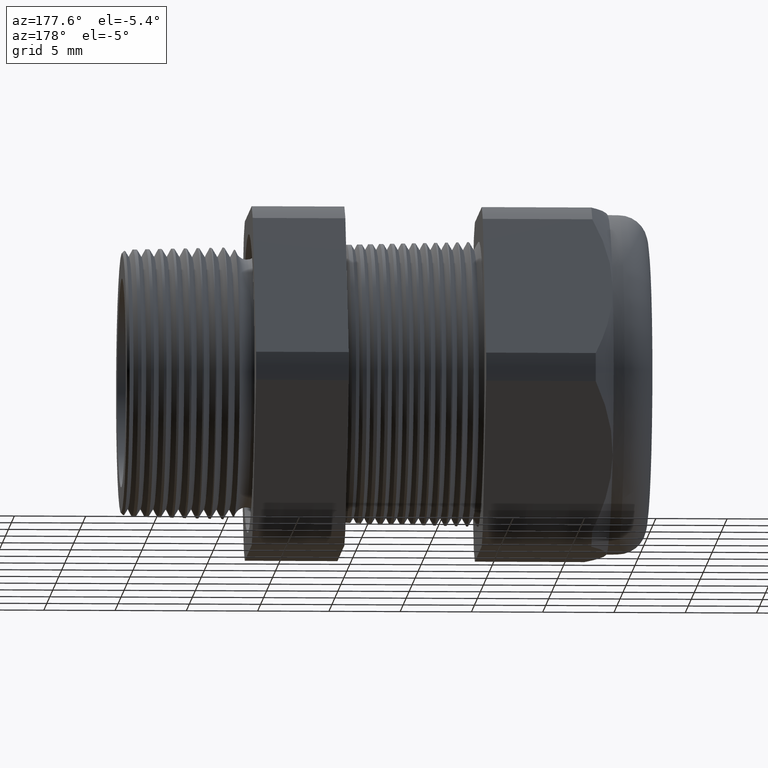
[diagram: clean part render]
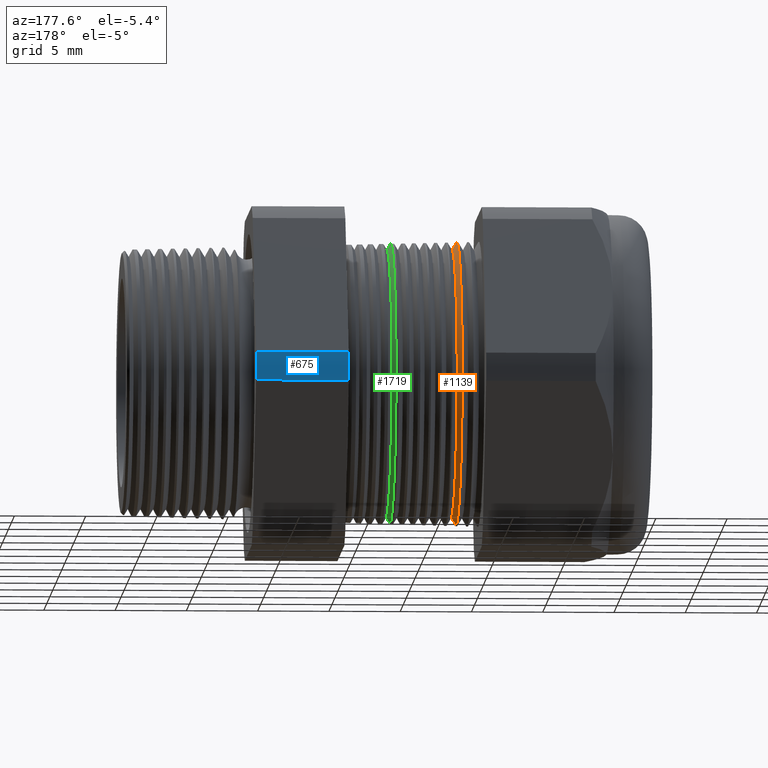
[diagram: same view with three faces highlighted in distinct colors, each labeled with its STEP entity id]
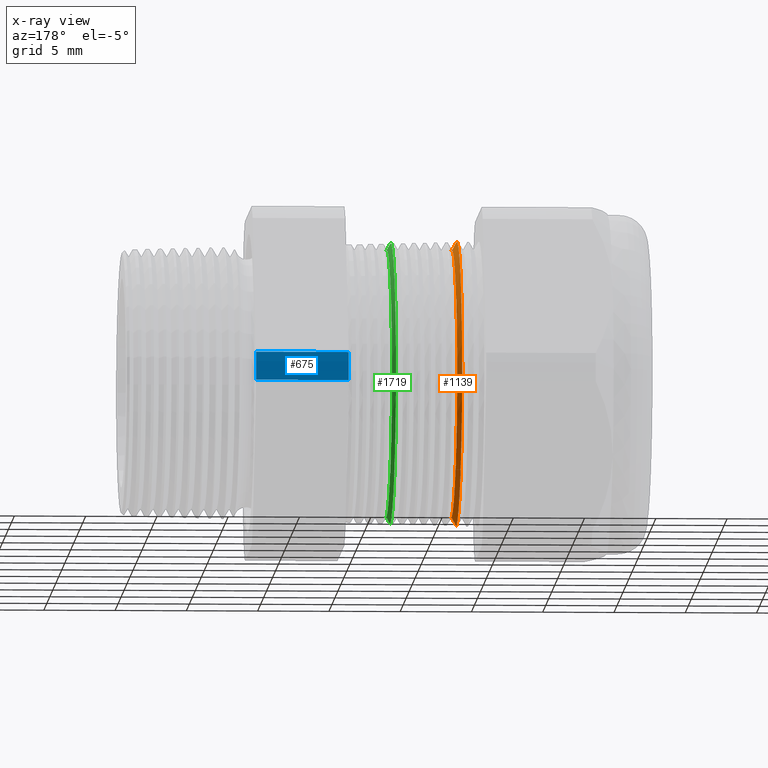
[diagram: x-ray of the same camera — body ghosted, the three highlighted faces saturated]
A machine part, auxiliary view with three faces highlighted in distinct colors.
The next image is the same camera in x-ray (body ghosted, the three faces saturated) — at least one of them is partly hidden behind the body in this view.
Their STEP definitions:

[orange] entity #1139 — the highlighted conical surface has half-angle 61.5 deg.
#1127 = EDGE_CURVE ( 'NONE', #1128, #1129, #3652, .T. ) ;
#1128 = VERTEX_POINT ( 'NONE', #3647 ) ;
#1129 = VERTEX_POINT ( 'NONE', #3646 ) ;
#1136 = EDGE_LOOP ( 'NONE', ( #1140, #1141, #1144, #1147 ) ) ;
#1139 = ADVANCED_FACE ( 'NONE', ( #3630 ), #3627, .T. ) ;
#1140 = ORIENTED_EDGE ( 'NONE', *, *, #1127, .F. ) ;
#1141 = ORIENTED_EDGE ( 'NONE', *, *, #1142, .T. ) ;
#1142 = EDGE_CURVE ( 'NONE', #1128, #1143, #3685, .T. ) ;
#1143 = VERTEX_POINT ( 'NONE', #3681 ) ;
#1144 = ORIENTED_EDGE ( 'NONE', *, *, #1145, .T. ) ;
#1145 = EDGE_CURVE ( 'NONE', #1143, #1146, #3680, .T. ) ;
#1146 = VERTEX_POINT ( 'NONE', #3675 ) ;
#1147 = ORIENTED_EDGE ( 'NONE', *, *, #1148, .F. ) ;
#1148 = EDGE_CURVE ( 'NONE', #1129, #1146, #3674, .T. ) ;
#3623 = DIRECTION ( 'NONE',  ( 0.0000000000000000000, 0.0000000000000000000, 1.000000000000000000 ) ) ;
#3624 = DIRECTION ( 'NONE',  ( -1.000000000000000000, 0.0000000000000000000, 0.0000000000000000000 ) ) ;
#3625 = CARTESIAN_POINT ( 'NONE',  ( -0.8854330708661419800, 0.0000000000000000000, 0.0000000000000000000 ) ) ;
#3626 = AXIS2_PLACEMENT_3D ( 'NONE', #3625, #3624, #3623 ) ;
#3627 = CONICAL_SURFACE ( 'NONE', #3626, 0.3950000000000000200, 1.073377489976500500 ) ;
#3630 = FACE_OUTER_BOUND ( 'NONE', #1136, .T. ) ;
#3646 = CARTESIAN_POINT ( 'NONE',  ( -0.8716586839320380500, 0.0000000000000000000, 0.3696307351718083300 ) ) ;
#3647 = CARTESIAN_POINT ( 'NONE',  ( -0.8716586839320380500, 4.672253604444746000E-017, -0.3696307351718083300 ) ) ;
#3648 = DIRECTION ( 'NONE',  ( 0.0000000000000000000, 0.0000000000000000000, -1.000000000000000000 ) ) ;
#3649 = DIRECTION ( 'NONE',  ( 1.000000000000000000, 0.0000000000000000000, 0.0000000000000000000 ) ) ;
#3650 = CARTESIAN_POINT ( 'NONE',  ( -0.8716586839320380500, 0.0000000000000000000, 0.0000000000000000000 ) ) ;
#3651 = AXIS2_PLACEMENT_3D ( 'NONE', #3650, #3649, #3648 ) ;
#3652 = CIRCLE ( 'NONE', #3651, 0.3696307351718083300 ) ;
#3671 = DIRECTION ( 'NONE',  ( -0.4771587602596191200, 0.0000000000000000000, 0.8788171126619595000 ) ) ;
#3672 = VECTOR ( 'NONE', #3671, 39.37007874015748100 ) ;
#3673 = CARTESIAN_POINT ( 'NONE',  ( -0.8854330708661419800, 0.0000000000000000000, 0.3950000000000000200 ) ) ;
#3674 = LINE ( 'NONE', #3673, #3672 ) ;
#3675 = CARTESIAN_POINT ( 'NONE',  ( -0.8845676994707502000, 0.0000000000000000000, 0.3934061841583613200 ) ) ;
#3676 = DIRECTION ( 'NONE',  ( 0.0000000000000000000, 0.0000000000000000000, 1.000000000000000000 ) ) ;
#3677 = DIRECTION ( 'NONE',  ( 1.000000000000000000, 0.0000000000000000000, 0.0000000000000000000 ) ) ;
#3678 = CARTESIAN_POINT ( 'NONE',  ( -0.8845676994707502000, 0.0000000000000000000, 0.0000000000000000000 ) ) ;
#3679 = AXIS2_PLACEMENT_3D ( 'NONE', #3678, #3677, #3676 ) ;
#3680 = CIRCLE ( 'NONE', #3679, 0.3934061841583613200 ) ;
#3681 = CARTESIAN_POINT ( 'NONE',  ( -0.8845676994707502000, 4.818234139899045100E-017, -0.3934061841583613200 ) ) ;
#3682 = DIRECTION ( 'NONE',  ( -0.4771587602596191200, 1.076240564057387800E-016, -0.8788171126619595000 ) ) ;
#3683 = VECTOR ( 'NONE', #3682, 39.37007874015748100 ) ;
#3684 = CARTESIAN_POINT ( 'NONE',  ( -0.8854330708661419800, 4.837354856632045600E-017, -0.3950000000000000200 ) ) ;
#3685 = LINE ( 'NONE', #3684, #3683 ) ;

[blue] entity #675 — the highlighted cylindrical surface (partial cylindrical patch) has radius 13.2512 mm, axis along (-1, 0, 0).
#540 = VERTEX_POINT ( 'NONE', #2801 ) ;
#542 = EDGE_CURVE ( 'NONE', #540, #543, #2800, .T. ) ;
#543 = VERTEX_POINT ( 'NONE', #2795 ) ;
#600 = VERTEX_POINT ( 'NONE', #2896 ) ;
#624 = EDGE_CURVE ( 'NONE', #540, #600, #2978, .T. ) ;
#671 = EDGE_CURVE ( 'NONE', #543, #672, #3027, .T. ) ;
#672 = VERTEX_POINT ( 'NONE', #3023 ) ;
#675 = ADVANCED_FACE ( 'NONE', ( #3018 ), #3017, .T. ) ;
#676 = EDGE_LOOP ( 'NONE', ( #677, #678, #679, #680 ) ) ;
#677 = ORIENTED_EDGE ( 'NONE', *, *, #671, .F. ) ;
#678 = ORIENTED_EDGE ( 'NONE', *, *, #542, .F. ) ;
#679 = ORIENTED_EDGE ( 'NONE', *, *, #624, .T. ) ;
#680 = ORIENTED_EDGE ( 'NONE', *, *, #681, .F. ) ;
#681 = EDGE_CURVE ( 'NONE', #672, #600, #3011, .T. ) ;
#2795 = CARTESIAN_POINT ( 'NONE',  ( -0.3100000000000000000, 0.5202473208008776600, 0.03890520787129518600 ) ) ;
#2796 = DIRECTION ( 'NONE',  ( 0.0000000000000000000, 0.0000000000000000000, -1.000000000000000000 ) ) ;
#2797 = DIRECTION ( 'NONE',  ( 1.000000000000000000, 0.0000000000000000000, 0.0000000000000000000 ) ) ;
#2798 = CARTESIAN_POINT ( 'NONE',  ( -0.3100000000000000000, 0.0000000000000000000, 0.0000000000000000000 ) ) ;
#2799 = AXIS2_PLACEMENT_3D ( 'NONE', #2798, #2797, #2796 ) ;
#2800 = CIRCLE ( 'NONE', #2799, 0.5217000000000000500 ) ;
#2801 = CARTESIAN_POINT ( 'NONE',  ( -0.3100000000000000000, 0.5202473208008777700, -0.03890520787129528300 ) ) ;
#2896 = CARTESIAN_POINT ( 'NONE',  ( -0.5659055118110235500, 0.5202473208008777700, -0.03890520787129524800 ) ) ;
#2975 = DIRECTION ( 'NONE',  ( -1.000000000000000000, 0.0000000000000000000, 0.0000000000000000000 ) ) ;
#2976 = VECTOR ( 'NONE', #2975, 39.37007874015748100 ) ;
#2977 = CARTESIAN_POINT ( 'NONE',  ( 0.04000000000000011900, 0.5202473208008777700, -0.03890520787129524800 ) ) ;
#2978 = LINE ( 'NONE', #2977, #2976 ) ;
#3009 = DIRECTION ( 'NONE',  ( -1.000000000000000000, 0.0000000000000000000, 0.0000000000000000000 ) ) ;
#3010 = AXIS2_PLACEMENT_3D ( 'NONE', #3016, #3009, #3076 ) ;
#3011 = CIRCLE ( 'NONE', #3010, 0.5217000000000000500 ) ;
#3012 = DIRECTION ( 'NONE',  ( 0.0000000000000000000, 0.0000000000000000000, 1.000000000000000000 ) ) ;
#3013 = DIRECTION ( 'NONE',  ( -1.000000000000000000, 0.0000000000000000000, 0.0000000000000000000 ) ) ;
#3014 = CARTESIAN_POINT ( 'NONE',  ( 0.04000000000000011900, 0.0000000000000000000, 0.0000000000000000000 ) ) ;
#3015 = AXIS2_PLACEMENT_3D ( 'NONE', #3014, #3013, #3012 ) ;
#3016 = CARTESIAN_POINT ( 'NONE',  ( -0.5659055118110235500, 0.0000000000000000000, 0.0000000000000000000 ) ) ;
#3017 = CYLINDRICAL_SURFACE ( 'NONE', #3015, 0.5217000000000000500 ) ;
#3018 = FACE_OUTER_BOUND ( 'NONE', #676, .T. ) ;
#3023 = CARTESIAN_POINT ( 'NONE',  ( -0.5659055118110235500, 0.5202473208008776600, 0.03890520787129518600 ) ) ;
#3024 = DIRECTION ( 'NONE',  ( -1.000000000000000000, 0.0000000000000000000, 0.0000000000000000000 ) ) ;
#3025 = VECTOR ( 'NONE', #3024, 39.37007874015748100 ) ;
#3026 = CARTESIAN_POINT ( 'NONE',  ( 0.04000000000000011900, 0.5202473208008776600, 0.03890520787129518600 ) ) ;
#3027 = LINE ( 'NONE', #3026, #3025 ) ;
#3076 = DIRECTION ( 'NONE',  ( 0.0000000000000000000, 0.0000000000000000000, 1.000000000000000000 ) ) ;

[green] entity #1719 — the highlighted conical surface has half-angle 61.5 deg.
#1620 = VERTEX_POINT ( 'NONE', #4586 ) ;
#1621 = ORIENTED_EDGE ( 'NONE', *, *, #1622, .T. ) ;
#1622 = EDGE_CURVE ( 'NONE', #1620, #1623, #4585, .T. ) ;
#1623 = VERTEX_POINT ( 'NONE', #4580 ) ;
#1624 = ORIENTED_EDGE ( 'NONE', *, *, #1625, .T. ) ;
#1625 = EDGE_CURVE ( 'NONE', #1645, #1620, #4579, .T. ) ;
#1626 = EDGE_LOOP ( 'NONE', ( #1666, #1624, #1621, #1676 ) ) ;
#1629 = EDGE_CURVE ( 'NONE', #1645, #1642, #4575, .T. ) ;
#1642 = VERTEX_POINT ( 'NONE', #4609 ) ;
#1645 = VERTEX_POINT ( 'NONE', #4606 ) ;
#1666 = ORIENTED_EDGE ( 'NONE', *, *, #1629, .F. ) ;
#1676 = ORIENTED_EDGE ( 'NONE', *, *, #1677, .F. ) ;
#1677 = EDGE_CURVE ( 'NONE', #1642, #1623, #4668, .T. ) ;
#1719 = ADVANCED_FACE ( 'NONE', ( #4742 ), #4741, .T. ) ;
#4571 = DIRECTION ( 'NONE',  ( 0.0000000000000000000, 0.0000000000000000000, -1.000000000000000000 ) ) ;
#4572 = DIRECTION ( 'NONE',  ( 1.000000000000000000, 0.0000000000000000000, 0.0000000000000000000 ) ) ;
#4573 = CARTESIAN_POINT ( 'NONE',  ( -0.6916586839320380000, 0.0000000000000000000, 0.0000000000000000000 ) ) ;
#4574 = AXIS2_PLACEMENT_3D ( 'NONE', #4573, #4572, #4571 ) ;
#4575 = CIRCLE ( 'NONE', #4574, 0.3696307351718083300 ) ;
#4576 = DIRECTION ( 'NONE',  ( -0.4771587602596191200, 1.076240564057387800E-016, -0.8788171126619595000 ) ) ;
#4577 = VECTOR ( 'NONE', #4576, 39.37007874015748100 ) ;
#4578 = CARTESIAN_POINT ( 'NONE',  ( -0.7054330708661420400, 4.837354856632045600E-017, -0.3950000000000000200 ) ) ;
#4579 = LINE ( 'NONE', #4578, #4577 ) ;
#4580 = CARTESIAN_POINT ( 'NONE',  ( -0.7019715852845747100, 0.0000000000000000000, 0.3886247366334449900 ) ) ;
#4581 = DIRECTION ( 'NONE',  ( 0.0000000000000000000, 0.0000000000000000000, 1.000000000000000000 ) ) ;
#4582 = DIRECTION ( 'NONE',  ( 1.000000000000000000, 0.0000000000000000000, 0.0000000000000000000 ) ) ;
#4583 = CARTESIAN_POINT ( 'NONE',  ( -0.7019715852845747100, 0.0000000000000000000, 0.0000000000000000000 ) ) ;
#4584 = AXIS2_PLACEMENT_3D ( 'NONE', #4583, #4582, #4581 ) ;
#4585 = CIRCLE ( 'NONE', #4584, 0.3886247366334449900 ) ;
#4586 = CARTESIAN_POINT ( 'NONE',  ( -0.7019715852845747100, 4.760550384735147600E-017, -0.3886247366334449900 ) ) ;
#4606 = CARTESIAN_POINT ( 'NONE',  ( -0.6916586839320380000, 4.642975682411348400E-017, -0.3696307351718083300 ) ) ;
#4609 = CARTESIAN_POINT ( 'NONE',  ( -0.6916586839320380000, 0.0000000000000000000, 0.3696307351718083300 ) ) ;
#4665 = DIRECTION ( 'NONE',  ( -0.4771587602596191200, 0.0000000000000000000, 0.8788171126619595000 ) ) ;
#4666 = VECTOR ( 'NONE', #4665, 39.37007874015748100 ) ;
#4667 = CARTESIAN_POINT ( 'NONE',  ( -0.7054330708661420400, 0.0000000000000000000, 0.3950000000000000200 ) ) ;
#4668 = LINE ( 'NONE', #4667, #4666 ) ;
#4736 = DIRECTION ( 'NONE',  ( 0.0000000000000000000, 0.0000000000000000000, 1.000000000000000000 ) ) ;
#4737 = DIRECTION ( 'NONE',  ( -1.000000000000000000, 0.0000000000000000000, 0.0000000000000000000 ) ) ;
#4738 = CARTESIAN_POINT ( 'NONE',  ( -0.7054330708661420400, 0.0000000000000000000, 0.0000000000000000000 ) ) ;
#4739 = AXIS2_PLACEMENT_3D ( 'NONE', #4738, #4737, #4736 ) ;
#4741 = CONICAL_SURFACE ( 'NONE', #4739, 0.3950000000000000200, 1.073377489976500500 ) ;
#4742 = FACE_OUTER_BOUND ( 'NONE', #1626, .T. ) ;